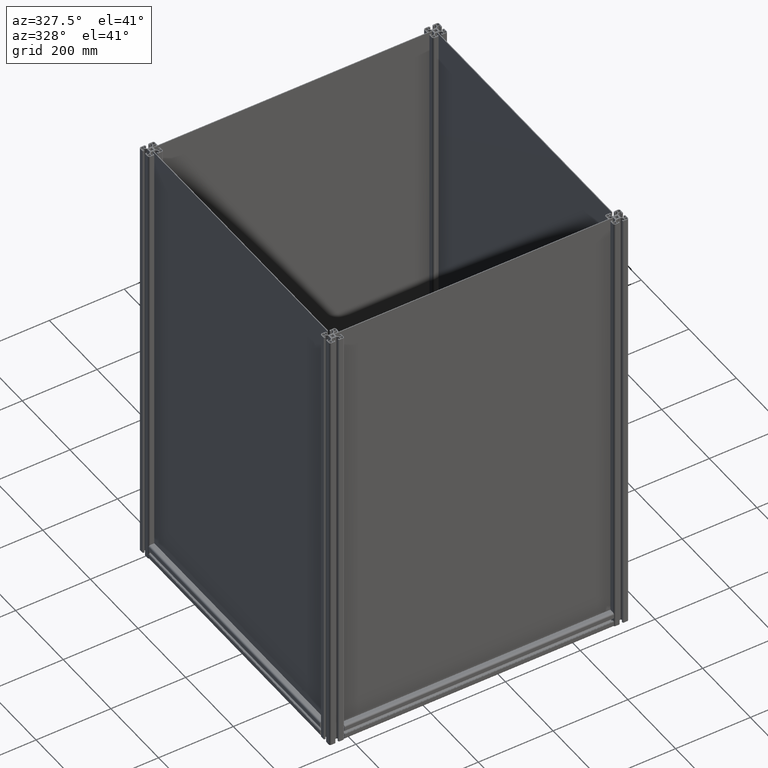
[diagram: clean part render]
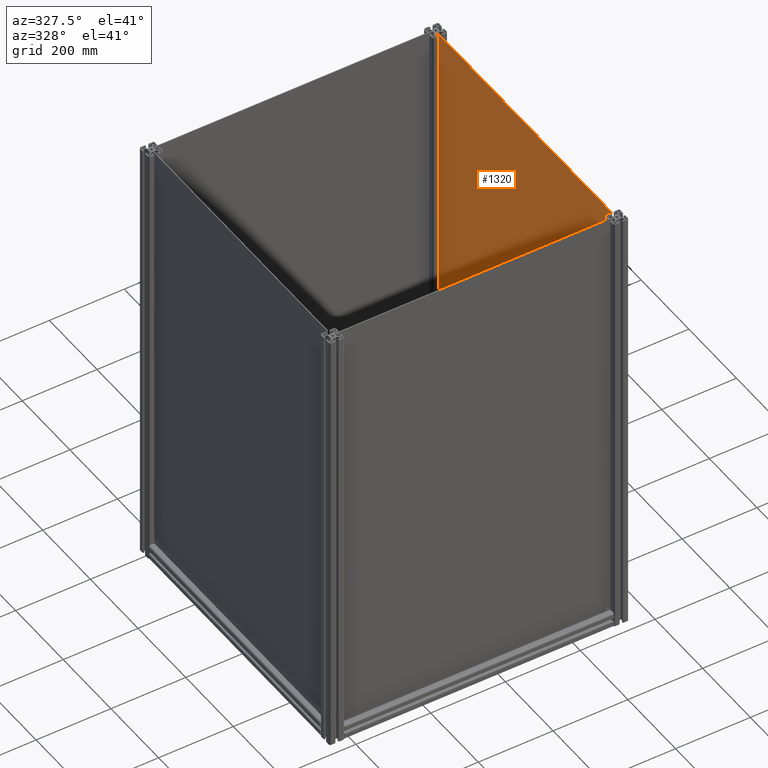
[diagram: same view with one face highlighted and labeled with its STEP entity id]
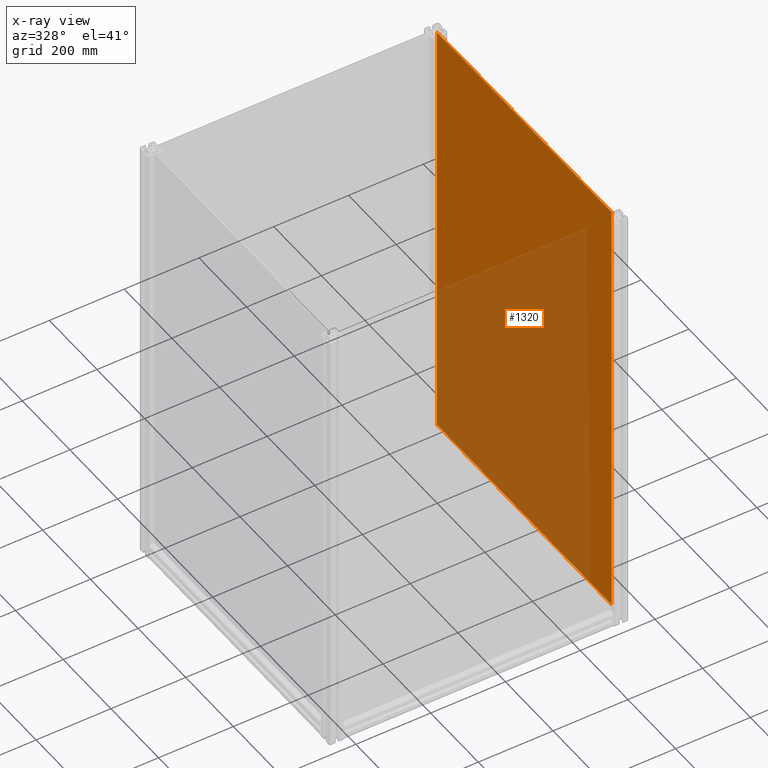
[diagram: x-ray of the same camera — body ghosted, the highlighted face saturated]
A machine part, auxiliary view. The second image highlights one B-rep face of the part: STEP entity #1320.
The next image is the same camera in x-ray: the body ghosted, the highlighted face saturated — about 54% of this face is hidden behind the body in this view.
In plain terms, the highlighted planar face has unit normal (1, 0, 0).
Its self-contained STEP definition (entity closure, byte-faithful):
#396 = LINE ( 'NONE', #958, #4448 ) ;
#958 = CARTESIAN_POINT ( 'NONE',  ( -600.7269624573378906, 257.8730375426625301, -2.000000000000000000 ) ) ;
#1125 = DIRECTION ( 'NONE',  ( 1.420449110318777311E-16, -1.000000000000000000, 0.000000000000000000 ) ) ;
#1320 = ADVANCED_FACE ( 'NONE', ( #8986 ), #2938, .F. ) ;
#1484 = VERTEX_POINT ( 'NONE', #4254 ) ;
#2275 = LINE ( 'NONE', #4627, #10015 ) ;
#2938 = PLANE ( 'NONE',  #6725 ) ;
#3020 = ORIENTED_EDGE ( 'NONE', *, *, #3101, .F. ) ;
#3101 = EDGE_CURVE ( 'NONE', #8472, #5989, #4404, .T. ) ;
#3784 = DIRECTION ( 'NONE',  ( 0.000000000000000000, -1.000000000000000000, 0.000000000000000000 ) ) ;
#4254 = CARTESIAN_POINT ( 'NONE',  ( 131.6730375426621720, -914.5269624573375040, -2.000000000000001776 ) ) ;
#4404 = LINE ( 'NONE', #4840, #8100 ) ;
#4448 = VECTOR ( 'NONE', #3784, 1000.000000000000000 ) ;
#4627 = CARTESIAN_POINT ( 'NONE',  ( 131.6730375426620299, 257.8730375426625301, -2.000000000000001776 ) ) ;
#4834 = EDGE_CURVE ( 'NONE', #1484, #8515, #10646, .T. ) ;
#4840 = CARTESIAN_POINT ( 'NONE',  ( -600.7269624573378906, 257.8730375426625301, -2.000000000000000000 ) ) ;
#5129 = CARTESIAN_POINT ( 'NONE',  ( -600.7269624573378906, 257.8730375426625301, -2.000000000000000000 ) ) ;
#5989 = VERTEX_POINT ( 'NONE', #5129 ) ;
#6383 = CARTESIAN_POINT ( 'NONE',  ( 0.000000000000000000, 0.000000000000000000, -2.000000000000000000 ) ) ;
#6478 = DIRECTION ( 'NONE',  ( 0.000000000000000000, 0.000000000000000000, 1.000000000000000000 ) ) ;
#6490 = EDGE_LOOP ( 'NONE', ( #3020, #8442, #7061, #11200 ) ) ;
#6725 = AXIS2_PLACEMENT_3D ( 'NONE', #6383, #6478, #10018 ) ;
#7061 = ORIENTED_EDGE ( 'NONE', *, *, #4834, .T. ) ;
#7349 = EDGE_CURVE ( 'NONE', #8472, #1484, #2275, .T. ) ;
#8100 = VECTOR ( 'NONE', #10223, 1000.000000000000000 ) ;
#8442 = ORIENTED_EDGE ( 'NONE', *, *, #7349, .T. ) ;
#8472 = VERTEX_POINT ( 'NONE', #10304 ) ;
#8515 = VERTEX_POINT ( 'NONE', #8584 ) ;
#8584 = CARTESIAN_POINT ( 'NONE',  ( -600.7269624573376632, -914.5269624573375040, -2.000000000000001776 ) ) ;
#8811 = CARTESIAN_POINT ( 'NONE',  ( -600.7269624573376632, -914.5269624573375040, -2.000000000000001776 ) ) ;
#8986 = FACE_OUTER_BOUND ( 'NONE', #6490, .T. ) ;
#9344 = EDGE_CURVE ( 'NONE', #5989, #8515, #396, .T. ) ;
#10015 = VECTOR ( 'NONE', #1125, 1000.000000000000000 ) ;
#10018 = DIRECTION ( 'NONE',  ( 1.000000000000000000, 0.000000000000000000, 0.000000000000000000 ) ) ;
#10223 = DIRECTION ( 'NONE',  ( -1.000000000000000000, 0.000000000000000000, 0.000000000000000000 ) ) ;
#10304 = CARTESIAN_POINT ( 'NONE',  ( 131.6730375426620299, 257.8730375426625301, -2.000000000000001776 ) ) ;
#10646 = LINE ( 'NONE', #8811, #11008 ) ;
#10744 = DIRECTION ( 'NONE',  ( -1.000000000000000000, 0.000000000000000000, 0.000000000000000000 ) ) ;
#11008 = VECTOR ( 'NONE', #10744, 1000.000000000000000 ) ;
#11200 = ORIENTED_EDGE ( 'NONE', *, *, #9344, .F. ) ;